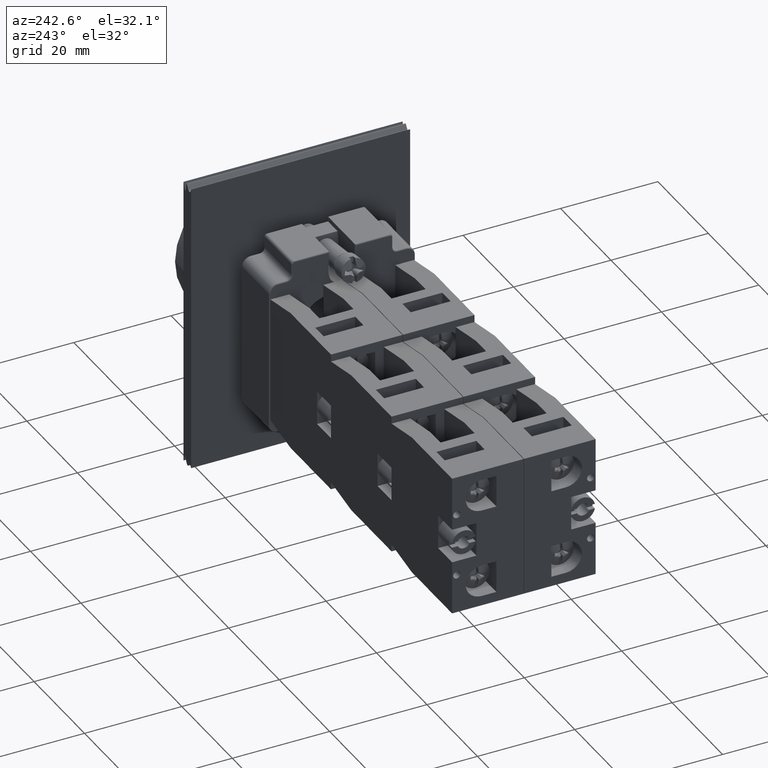
[diagram: clean part render]
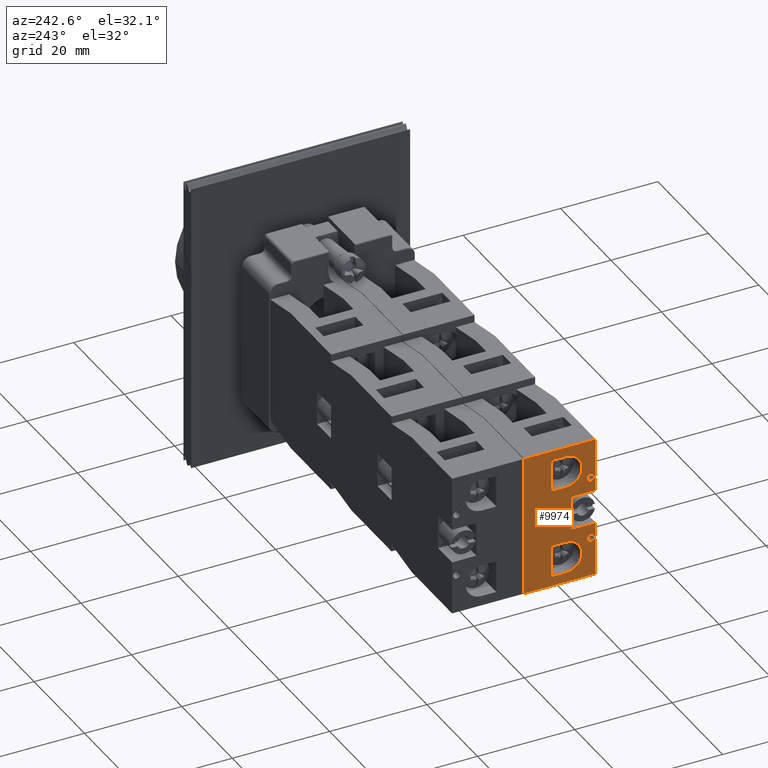
[diagram: same view with one face highlighted and labeled with its STEP entity id]
A machine part, auxiliary view. The second image highlights one B-rep face of the part: STEP entity #9974.
In plain terms, the highlighted planar face has unit normal (-1, 0, 0).
Its self-contained STEP definition (entity closure, byte-faithful):
#8376=CARTESIAN_POINT('',(-44.936741828918471,23.797073323279623,14.699999999999999));
#8377=VERTEX_POINT('',#8376);
#8384=CARTESIAN_POINT('',(-44.936741828918471,23.797073323279623,0.0));
#8385=VERTEX_POINT('',#8384);
#8386=CARTESIAN_POINT('',(-44.936741828918471,23.797073323279623,0.0));
#8387=DIRECTION('',(0.0,0.0,1.0));
#8388=VECTOR('',#8387,14.699999999999999);
#8389=LINE('',#8386,#8388);
#8390=EDGE_CURVE('',#8385,#8377,#8389,.T.);
#9359=CARTESIAN_POINT('',(-36.186741828918457,23.797073323279623,13.700000000000001));
#9360=VERTEX_POINT('',#9359);
#9361=CARTESIAN_POINT('',(-36.936741828918457,23.797073323279623,13.700000000000001));
#9362=DIRECTION('',(0.0,-1.0,0.0));
#9363=DIRECTION('',(-1.0,0.0,0.0));
#9364=AXIS2_PLACEMENT_3D('',#9361,#9362,#9363);
#9365=CIRCLE('',#9364,0.750000000000000);
#9366=EDGE_CURVE('',#9360,#9360,#9365,.T.);
#9396=CARTESIAN_POINT('',(-23.186741828918453,23.797073323279626,13.700000000000001));
#9397=VERTEX_POINT('',#9396);
#9398=CARTESIAN_POINT('',(-23.936741828918457,23.797073323279623,13.700000000000001));
#9399=DIRECTION('',(0.0,-1.0,0.0));
#9400=DIRECTION('',(-1.0,0.0,0.0));
#9401=AXIS2_PLACEMENT_3D('',#9398,#9399,#9400);
#9402=CIRCLE('',#9401,0.750000000000000);
#9403=EDGE_CURVE('',#9397,#9397,#9402,.T.);
#9471=CARTESIAN_POINT('',(-24.536741828918480,23.797073323279633,5.600000000000000));
#9472=VERTEX_POINT('',#9471);
#9479=CARTESIAN_POINT('',(-24.536741828918473,23.797073323279633,8.600000000000000));
#9480=VERTEX_POINT('',#9479);
#9481=CARTESIAN_POINT('',(-24.536741828918473,23.797073323279633,8.600000000000000));
#9482=DIRECTION('',(0.0,0.0,-1.0));
#9483=VECTOR('',#9482,3.0);
#9484=LINE('',#9481,#9483);
#9485=EDGE_CURVE('',#9480,#9472,#9484,.T.);
#9502=CARTESIAN_POINT('',(-17.936741828918478,23.797073323279641,5.600000000000000));
#9503=VERTEX_POINT('',#9502);
#9510=CARTESIAN_POINT('',(-24.536741828918480,23.797073323279633,5.600000000000000));
#9511=DIRECTION('',(1.0,0.0,0.0));
#9512=VECTOR('',#9511,6.600000000000001);
#9513=LINE('',#9510,#9512);
#9514=EDGE_CURVE('',#9472,#9503,#9513,.T.);
#9567=CARTESIAN_POINT('',(-36.336741828918470,23.797073323279623,8.600000000000000));
#9568=VERTEX_POINT('',#9567);
#9575=CARTESIAN_POINT('',(-36.336741828918463,23.797073323279623,5.600000000000000));
#9576=VERTEX_POINT('',#9575);
#9577=CARTESIAN_POINT('',(-36.336741828918463,23.797073323279623,5.600000000000000));
#9578=DIRECTION('',(0.0,0.0,1.0));
#9579=VECTOR('',#9578,3.0);
#9580=LINE('',#9577,#9579);
#9581=EDGE_CURVE('',#9576,#9568,#9580,.T.);
#9598=CARTESIAN_POINT('',(-42.936741828918471,23.797073323279623,8.600000000000000));
#9599=VERTEX_POINT('',#9598);
#9606=CARTESIAN_POINT('',(-39.636741828918467,23.797073323279623,8.600000000000000));
#9607=DIRECTION('',(0.0,-1.0,0.0));
#9608=DIRECTION('',(1.0,0.0,0.0));
#9609=AXIS2_PLACEMENT_3D('',#9606,#9607,#9608);
#9610=CIRCLE('',#9609,3.300000000000001);
#9611=EDGE_CURVE('',#9568,#9599,#9610,.T.);
#9623=CARTESIAN_POINT('',(-17.936741828918478,23.797073323279641,8.600000000000000));
#9624=VERTEX_POINT('',#9623);
#9631=CARTESIAN_POINT('',(-17.936741828918478,23.797073323279641,5.600000000000000));
#9632=DIRECTION('',(0.0,0.0,1.0));
#9633=VECTOR('',#9632,3.0);
#9634=LINE('',#9631,#9633);
#9635=EDGE_CURVE('',#9503,#9624,#9634,.T.);
#9669=CARTESIAN_POINT('',(-21.236741828918476,23.797073323279648,8.600000000000000));
#9670=DIRECTION('',(0.0,-1.0,0.0));
#9671=DIRECTION('',(-1.0,0.0,0.0));
#9672=AXIS2_PLACEMENT_3D('',#9669,#9670,#9671);
#9673=CIRCLE('',#9672,3.300000000000001);
#9674=EDGE_CURVE('',#9624,#9480,#9673,.T.);
#9705=CARTESIAN_POINT('',(-42.936741828918471,23.797073323279623,5.600000000000000));
#9706=VERTEX_POINT('',#9705);
#9713=CARTESIAN_POINT('',(-42.936741828918471,23.797073323279623,8.600000000000000));
#9714=DIRECTION('',(0.0,0.0,-1.0));
#9715=VECTOR('',#9714,3.0);
#9716=LINE('',#9713,#9715);
#9717=EDGE_CURVE('',#9599,#9706,#9716,.T.);
#9730=CARTESIAN_POINT('',(-42.936741828918471,23.797073323279623,5.600000000000000));
#9731=DIRECTION('',(1.0,0.0,0.0));
#9732=VECTOR('',#9731,6.600000000000009);
#9733=LINE('',#9730,#9732);
#9734=EDGE_CURVE('',#9706,#9576,#9733,.T.);
#9810=CARTESIAN_POINT('',(-26.936741828918468,23.797073323279626,14.699999999999999));
#9811=VERTEX_POINT('',#9810);
#9818=CARTESIAN_POINT('',(-26.936741828918464,23.797073323279626,9.700000000000001));
#9819=VERTEX_POINT('',#9818);
#9820=CARTESIAN_POINT('',(-26.936741828918464,23.797073323279626,9.700000000000001));
#9821=DIRECTION('',(0.0,0.0,1.0));
#9822=VECTOR('',#9821,4.999999999999998);
#9823=LINE('',#9820,#9822);
#9824=EDGE_CURVE('',#9819,#9811,#9823,.T.);
#9849=CARTESIAN_POINT('',(-33.936741828918464,23.797073323279623,9.700000000000001));
#9850=VERTEX_POINT('',#9849);
#9851=CARTESIAN_POINT('',(-33.936741828918464,23.797073323279623,9.700000000000001));
#9852=DIRECTION('',(1.0,0.0,0.0));
#9853=VECTOR('',#9852,7.0);
#9854=LINE('',#9851,#9853);
#9855=EDGE_CURVE('',#9850,#9819,#9854,.T.);
#9880=CARTESIAN_POINT('',(-33.936741828918464,23.797073323279623,14.699999999999999));
#9881=VERTEX_POINT('',#9880);
#9882=CARTESIAN_POINT('',(-33.936741828918464,23.797073323279623,14.699999999999999));
#9883=DIRECTION('',(0.0,0.0,-1.0));
#9884=VECTOR('',#9883,4.999999999999998);
#9885=LINE('',#9882,#9884);
#9886=EDGE_CURVE('',#9881,#9850,#9885,.T.);
#9917=CARTESIAN_POINT('',(-44.936741828918471,23.797073323279623,0.0));
#9918=DIRECTION('',(0.0,1.0,0.0));
#9919=DIRECTION('',(0.0,0.0,1.0));
#9920=AXIS2_PLACEMENT_3D('',#9917,#9918,#9919);
#9921=PLANE('',#9920);
#9922=ORIENTED_EDGE('',*,*,#9886,.T.);
#9923=ORIENTED_EDGE('',*,*,#9855,.T.);
#9924=ORIENTED_EDGE('',*,*,#9824,.T.);
#9925=CARTESIAN_POINT('',(-15.936741828918466,23.797073323279626,14.699999999999999));
#9926=VERTEX_POINT('',#9925);
#9927=CARTESIAN_POINT('',(-26.936741828918468,23.797073323279626,14.699999999999999));
#9928=DIRECTION('',(1.0,0.0,0.0));
#9929=VECTOR('',#9928,11.000000000000002);
#9930=LINE('',#9927,#9929);
#9931=EDGE_CURVE('',#9811,#9926,#9930,.T.);
#9932=ORIENTED_EDGE('',*,*,#9931,.T.);
#9933=CARTESIAN_POINT('',(-15.936741828918466,23.797073323279626,0.0));
#9934=VERTEX_POINT('',#9933);
#9935=CARTESIAN_POINT('',(-15.936741828918466,23.797073323279626,0.0));
#9936=DIRECTION('',(0.0,0.0,1.0));
#9937=VECTOR('',#9936,14.699999999999999);
#9938=LINE('',#9935,#9937);
#9939=EDGE_CURVE('',#9934,#9926,#9938,.T.);
#9940=ORIENTED_EDGE('',*,*,#9939,.F.);
#9941=CARTESIAN_POINT('',(-44.936741828918471,23.797073323279623,0.0));
#9942=DIRECTION('',(1.0,0.0,0.0));
#9943=VECTOR('',#9942,29.000000000000007);
#9944=LINE('',#9941,#9943);
#9945=EDGE_CURVE('',#8385,#9934,#9944,.T.);
#9946=ORIENTED_EDGE('',*,*,#9945,.F.);
#9947=ORIENTED_EDGE('',*,*,#8390,.T.);
#9948=CARTESIAN_POINT('',(-44.936741828918471,23.797073323279623,14.699999999999999));
#9949=DIRECTION('',(1.0,0.0,0.0));
#9950=VECTOR('',#9949,11.000000000000007);
#9951=LINE('',#9948,#9950);
#9952=EDGE_CURVE('',#8377,#9881,#9951,.T.);
#9953=ORIENTED_EDGE('',*,*,#9952,.T.);
#9954=EDGE_LOOP('',(#9922,#9923,#9924,#9932,#9940,#9946,#9947,#9953));
#9955=FACE_OUTER_BOUND('',#9954,.T.);
#9956=ORIENTED_EDGE('',*,*,#9366,.T.);
#9957=EDGE_LOOP('',(#9956));
#9958=FACE_BOUND('',#9957,.T.);
#9959=ORIENTED_EDGE('',*,*,#9403,.T.);
#9960=EDGE_LOOP('',(#9959));
#9961=FACE_BOUND('',#9960,.T.);
#9962=ORIENTED_EDGE('',*,*,#9635,.T.);
#9963=ORIENTED_EDGE('',*,*,#9674,.T.);
#9964=ORIENTED_EDGE('',*,*,#9485,.T.);
#9965=ORIENTED_EDGE('',*,*,#9514,.T.);
#9966=EDGE_LOOP('',(#9962,#9963,#9964,#9965));
#9967=FACE_BOUND('',#9966,.T.);
#9968=ORIENTED_EDGE('',*,*,#9717,.T.);
#9969=ORIENTED_EDGE('',*,*,#9734,.T.);
#9970=ORIENTED_EDGE('',*,*,#9581,.T.);
#9971=ORIENTED_EDGE('',*,*,#9611,.T.);
#9972=EDGE_LOOP('',(#9968,#9969,#9970,#9971));
#9973=FACE_BOUND('',#9972,.T.);
#9974=ADVANCED_FACE('',(#9955,#9958,#9961,#9967,#9973),#9921,.T.);